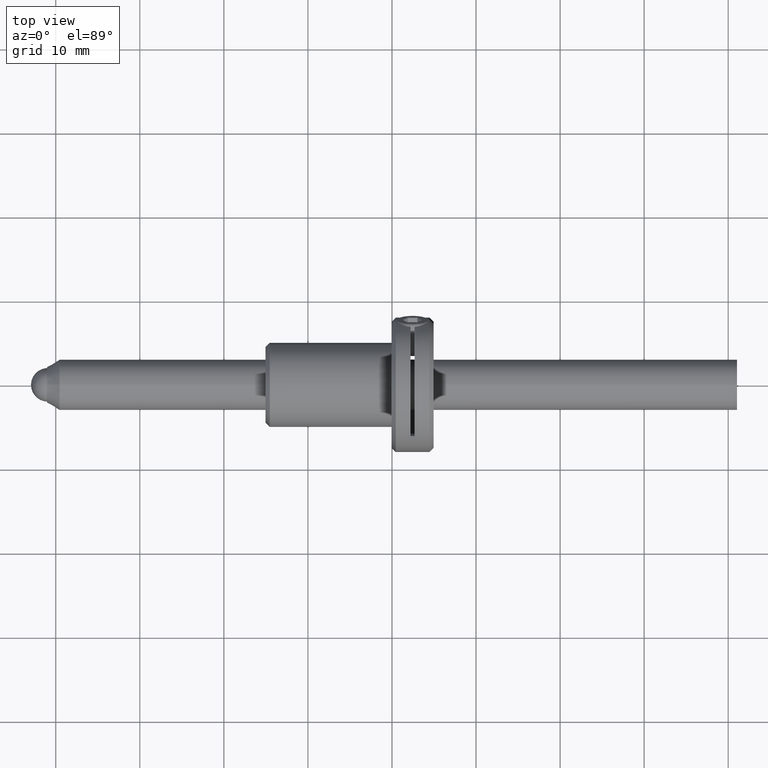
[diagram: clean part render]
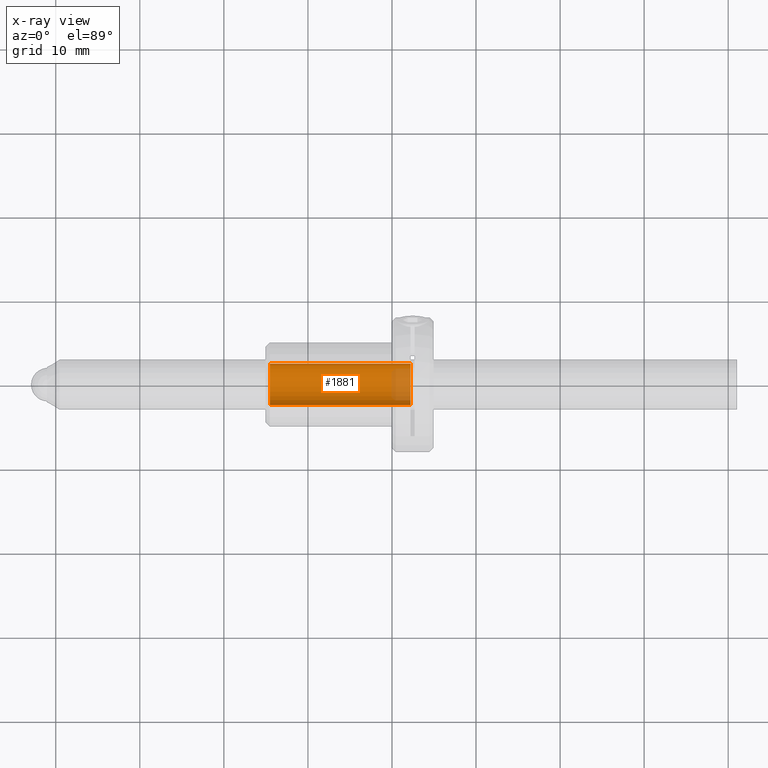
[diagram: x-ray — body ghosted, one internal face saturated and labeled with its STEP entity id]
A machine part, top view, then the same camera in x-ray: the body is ghosted and one INTERNAL B-rep face — a face not visible from any outside direction — is saturated and labeled: STEP entity #1881.
In plain terms, the highlighted cylindrical surface (edge-blend (fillet) strip) has radius 2.5 mm, axis along (1, 0, 0).
Its self-contained STEP definition (entity closure, byte-faithful):
#32 = CARTESIAN_POINT ( 'NONE',  ( -14.54999999999999361, -5.426736848533666609E-16, -7.892009290543411720E-16 ) ) ;
#33 = EDGE_CURVE ( 'NONE', #42, #358, #841, .T. ) ;
#42 = VERTEX_POINT ( 'NONE', #1376 ) ;
#112 = VERTEX_POINT ( 'NONE', #1787 ) ;
#174 = VERTEX_POINT ( 'NONE', #1479 ) ;
#190 = EDGE_CURVE ( 'NONE', #174, #42, #1271, .T. ) ;
#277 = ORIENTED_EDGE ( 'NONE', *, *, #33, .F. ) ;
#303 = AXIS2_PLACEMENT_3D ( 'NONE', #1396, #598, #941 ) ;
#358 = VERTEX_POINT ( 'NONE', #1749 ) ;
#476 = LINE ( 'NONE', #521, #1342 ) ;
#521 = CARTESIAN_POINT ( 'NONE',  ( 4.950000000000000178, -2.398141427073351206, -0.7063410619201985208 ) ) ;
#598 = DIRECTION ( 'NONE',  ( 1.000000000000000000, 0.000000000000000000, 0.000000000000000000 ) ) ;
#631 = DIRECTION ( 'NONE',  ( -1.000000000000000000, -0.000000000000000000, -0.000000000000000000 ) ) ;
#762 = ORIENTED_EDGE ( 'NONE', *, *, #1671, .T. ) ;
#769 = EDGE_LOOP ( 'NONE', ( #1169, #762, #277, #813 ) ) ;
#813 = ORIENTED_EDGE ( 'NONE', *, *, #190, .F. ) ;
#841 = CIRCLE ( 'NONE', #1747, 2.499999999999992006 ) ;
#941 = DIRECTION ( 'NONE',  ( 0.000000000000000000, 0.9592565708293433469, 0.2825364247680801078 ) ) ;
#1030 = DIRECTION ( 'NONE',  ( -1.734723475976812764E-16, -0.9592565708293433469, -0.2825364247680801078 ) ) ;
#1058 = CYLINDRICAL_SURFACE ( 'NONE', #303, 2.499999999999992006 ) ;
#1060 = DIRECTION ( 'NONE',  ( -1.000000000000000000, 9.984269357416027329E-17, 2.940735413182461736E-17 ) ) ;
#1146 = CIRCLE ( 'NONE', #1182, 2.499999999999992006 ) ;
#1169 = ORIENTED_EDGE ( 'NONE', *, *, #1351, .T. ) ;
#1175 = VECTOR ( 'NONE', #1584, 1000.000000000000000 ) ;
#1182 = AXIS2_PLACEMENT_3D ( 'NONE', #32, #631, #1265 ) ;
#1265 = DIRECTION ( 'NONE',  ( 0.000000000000000000, 0.9592565708293433469, 0.2825364247680801078 ) ) ;
#1271 = LINE ( 'NONE', #1714, #1175 ) ;
#1342 = VECTOR ( 'NONE', #1617, 1000.000000000000000 ) ;
#1351 = EDGE_CURVE ( 'NONE', #174, #112, #1146, .T. ) ;
#1376 = CARTESIAN_POINT ( 'NONE',  ( 2.200000000000001066, 2.398141427073350318, 0.7063410619201972995 ) ) ;
#1396 = CARTESIAN_POINT ( 'NONE',  ( 4.950000000000000178, -5.426736848533666609E-16, -7.892009290543411720E-16 ) ) ;
#1479 = CARTESIAN_POINT ( 'NONE',  ( -14.54999999999999361, 2.398141427073350762, 0.7063410619201972995 ) ) ;
#1513 = CARTESIAN_POINT ( 'NONE',  ( 2.200000000000000622, -5.426736848533666609E-16, -7.892009290543411720E-16 ) ) ;
#1584 = DIRECTION ( 'NONE',  ( 1.000000000000000000, 0.000000000000000000, 0.000000000000000000 ) ) ;
#1617 = DIRECTION ( 'NONE',  ( 1.000000000000000000, 0.000000000000000000, 0.000000000000000000 ) ) ;
#1671 = EDGE_CURVE ( 'NONE', #112, #358, #476, .T. ) ;
#1714 = CARTESIAN_POINT ( 'NONE',  ( 4.950000000000000178, 2.398141427073350762, 0.7063410619201972995 ) ) ;
#1747 = AXIS2_PLACEMENT_3D ( 'NONE', #1513, #1060, #1030 ) ;
#1749 = CARTESIAN_POINT ( 'NONE',  ( 2.200000000000000178, -2.398141427073350762, -0.7063410619201984098 ) ) ;
#1787 = CARTESIAN_POINT ( 'NONE',  ( -14.54999999999999361, -2.398141427073350762, -0.7063410619201984098 ) ) ;
#1881 = ADVANCED_FACE ( 'NONE', ( #1992 ), #1058, .F. ) ;
#1992 = FACE_OUTER_BOUND ( 'NONE', #769, .T. ) ;